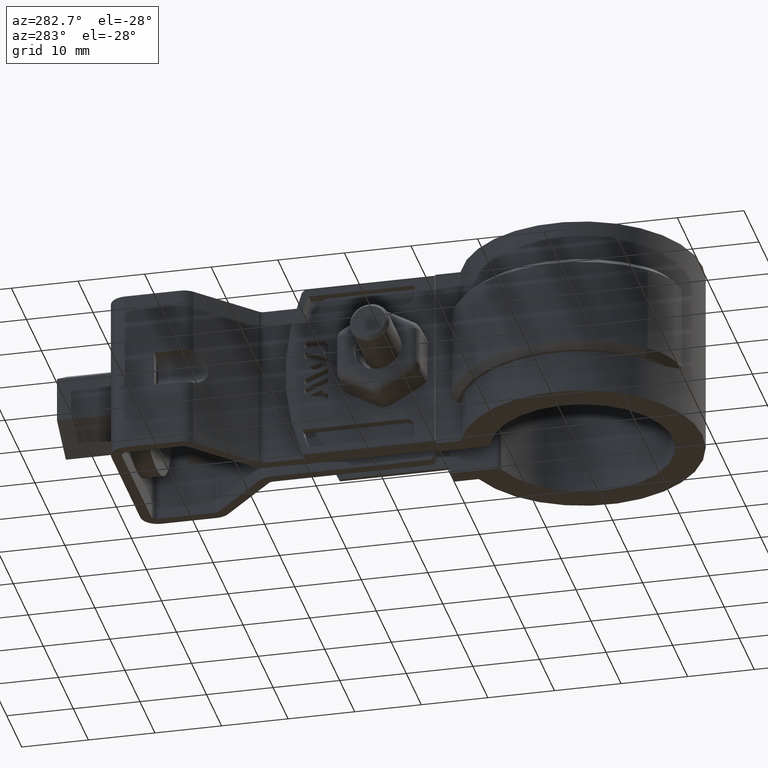
[diagram: clean part render]
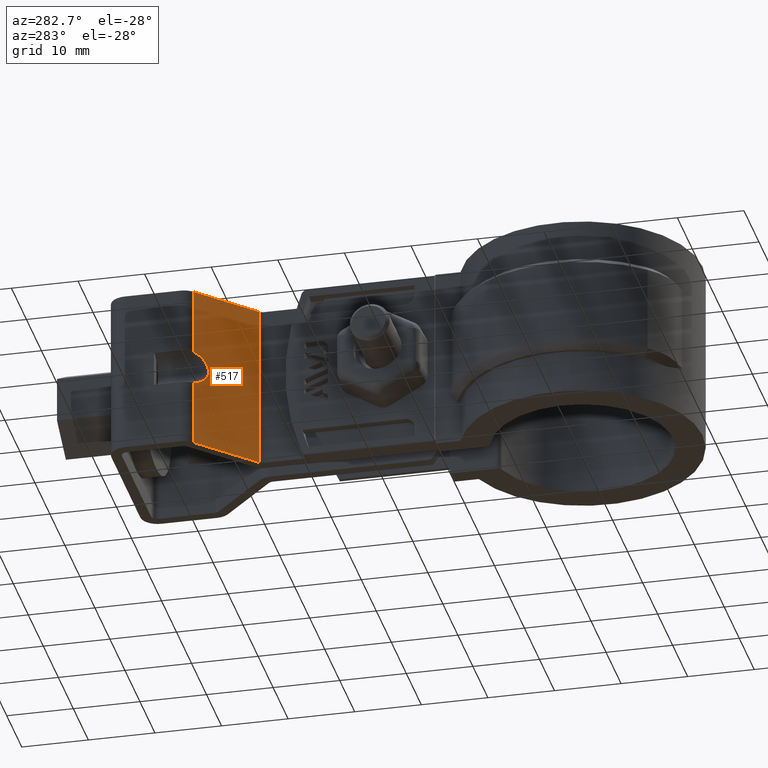
[diagram: same view with one face highlighted and labeled with its STEP entity id]
A machine part, auxiliary view. The second image highlights one B-rep face of the part: STEP entity #517.
In plain terms, the highlighted planar face has unit normal (-0.6983, -0.7158, -0).
Its self-contained STEP definition (entity closure, byte-faithful):
#517 = ADVANCED_FACE( '', ( #1012 ), #1013, .T. );
#1012 = FACE_OUTER_BOUND( '', #2093, .T. );
#1013 = PLANE( '', #2094 );
#2093 = EDGE_LOOP( '', ( #4578, #4579, #4580, #4581, #4582, #4583 ) );
#2094 = AXIS2_PLACEMENT_3D( '', #4584, #4585, #4586 );
#4578 = ORIENTED_EDGE( '', *, *, #6432, .F. );
#4579 = ORIENTED_EDGE( '', *, *, #6387, .T. );
#4580 = ORIENTED_EDGE( '', *, *, #6336, .T. );
#4581 = ORIENTED_EDGE( '', *, *, #6417, .T. );
#4582 = ORIENTED_EDGE( '', *, *, #6407, .F. );
#4583 = ORIENTED_EDGE( '', *, *, #6441, .T. );
#4584 = CARTESIAN_POINT( '', ( -3.90167606559265, 48.4545849716616, 1.56472473866742E-008 ) );
#4585 = DIRECTION( '', ( -0.698323836099389, -0.715781963963492, -1.20787709048751E-010 ) );
#4586 = DIRECTION( '', ( 0.715781963963492, -0.698323836099389, -6.44548234189015E-011 ) );
#6336 = EDGE_CURVE( '', #7498, #7496, #7499, .T. );
#6387 = EDGE_CURVE( '', #7579, #7498, #7582, .T. );
#6407 = EDGE_CURVE( '', #7616, #7617, #7618, .T. );
#6417 = EDGE_CURVE( '', #7496, #7617, #7632, .T. );
#6432 = EDGE_CURVE( '', #7579, #7653, #7654, .T. );
#6441 = EDGE_CURVE( '', #7616, #7653, #7667, .T. );
#7496 = VERTEX_POINT( '', #10585 );
#7498 = VERTEX_POINT( '', #10587 );
#7499 = LINE( '', #10588, #10589 );
#7579 = VERTEX_POINT( '', #10725 );
#7582 = LINE( '', #10729, #10730 );
#7616 = VERTEX_POINT( '', #10783 );
#7617 = VERTEX_POINT( '', #10784 );
#7618 = ELLIPSE( '', #10785, 3.70224472166266, 2.64999999999997 );
#7632 = LINE( '', #10820, #10821 );
#7653 = VERTEX_POINT( '', #10852 );
#7654 = LINE( '', #10853, #10854 );
#7667 = LINE( '', #10871, #10872 );
#10585 = CARTESIAN_POINT( '', ( -11.4656418676374, 55.8340634734110, 1.63283692122818E-008 ) );
#10587 = CARTESIAN_POINT( '', ( -3.30167606605787, 47.8692191445952, 1.55932211587384E-008 ) );
#10588 = CARTESIAN_POINT( '', ( -3.90167606559265, 48.4545849716616, 1.56472473866742E-008 ) );
#10589 = VECTOR( '', #12451, 1000.00000000000 );
#10725 = CARTESIAN_POINT( '', ( -3.30167606510254, 47.8692191478819, -24.9999999844068 ) );
#10729 = CARTESIAN_POINT( '', ( -3.30167606605787, 47.8692191445952, 1.55932072809506E-008 ) );
#10730 = VECTOR( '', #12528, 1000.00000000000 );
#10783 = CARTESIAN_POINT( '', ( -11.4656418670630, 55.8340634753870, -15.0312610299699 ) );
#10784 = CARTESIAN_POINT( '', ( -11.4656418672564, 55.8340634747215, -9.96873893737339 ) );
#10785 = AXIS2_PLACEMENT_3D( '', #12562, #12563, #12564 );
#10820 = CARTESIAN_POINT( '', ( -11.4656418676374, 55.8340634734110, 1.63283692122818E-008 ) );
#10821 = VECTOR( '', #12576, 1000.00000000000 );
#10852 = CARTESIAN_POINT( '', ( -11.4656418666821, 55.8340634766977, -24.9999999836716 ) );
#10853 = CARTESIAN_POINT( '', ( -3.90167606463731, 48.4545849749484, -24.9999999843528 ) );
#10854 = VECTOR( '', #12599, 1000.00000000000 );
#10871 = CARTESIAN_POINT( '', ( -11.4656418676374, 55.8340634734110, 1.63283692122818E-008 ) );
#10872 = VECTOR( '', #12616, 1000.00000000000 );
#12451 = DIRECTION( '', ( -0.715781963963492, 0.698323836099389, 6.44548234189015E-011 ) );
#12528 = DIRECTION( '', ( -3.82132750125618E-011, -1.31468062887455E-010, 1.00000000000000 ) );
#12562 = CARTESIAN_POINT( '', ( -12.2499998941722, 56.5992907843116, -12.4999999836010 ) );
#12563 = DIRECTION( '', ( -0.698323836099387, -0.715781963963494, -1.20787673946304E-010 ) );
#12564 = DIRECTION( '', ( -0.715781963963494, 0.698323836099387, 6.44548593989119E-011 ) );
#12576 = DIRECTION( '', ( 3.82133362428794E-011, 1.31468003150562E-010, -1.00000000000000 ) );
#12599 = DIRECTION( '', ( -0.715781963963492, 0.698323836099389, 6.44548234189015E-011 ) );
#12616 = DIRECTION( '', ( 3.82133362428794E-011, 1.31468003150562E-010, -1.00000000000000 ) );